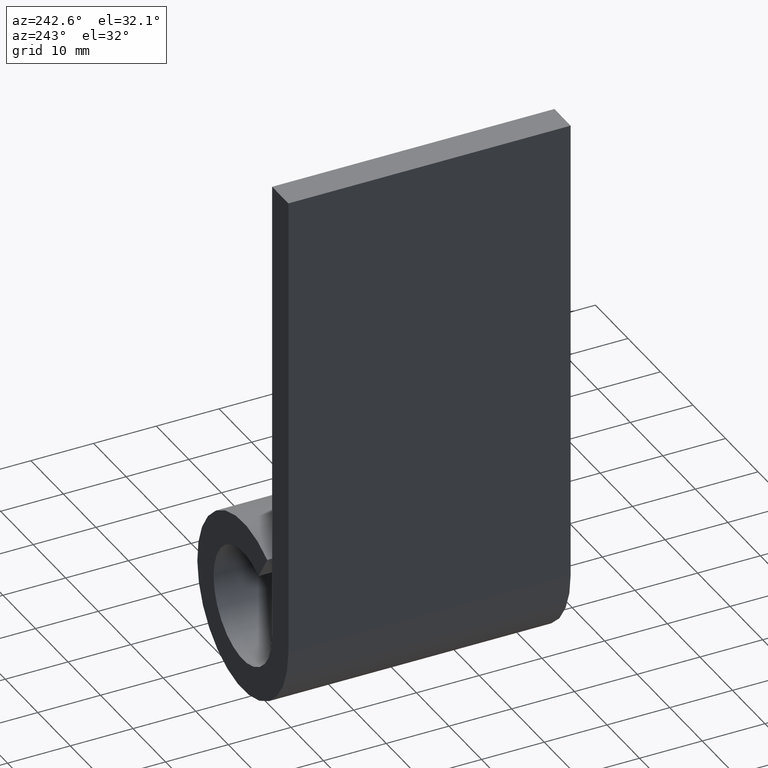
[diagram: clean part render]
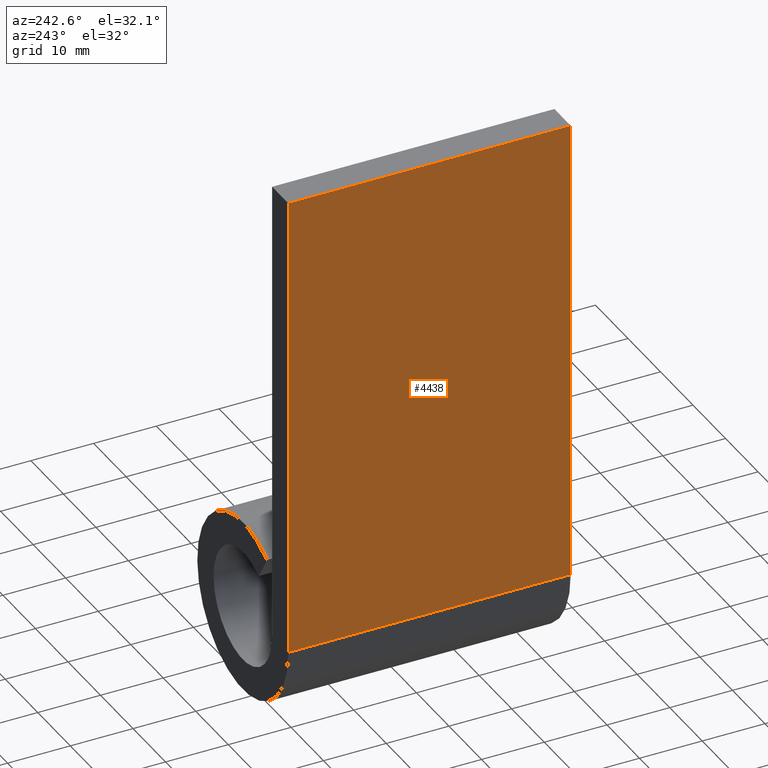
[diagram: same view with one face highlighted and labeled with its STEP entity id]
A machine part, auxiliary view. The second image highlights one B-rep face of the part: STEP entity #4438.
In plain terms, the highlighted planar face has unit normal (1, -0, 0).
Its self-contained STEP definition (entity closure, byte-faithful):
#51 = ORIENTED_EDGE ( 'NONE', *, *, #8779, .F. ) ;
#410 = CARTESIAN_POINT ( 'NONE',  ( -13.99999999999999822, -22.50000000000000000, 75.00000000000000000 ) ) ;
#685 = CARTESIAN_POINT ( 'NONE',  ( -13.99999999999999822, 22.50000000000000000, 75.00000000000000000 ) ) ;
#713 = VERTEX_POINT ( 'NONE', #410 ) ;
#753 = DIRECTION ( 'NONE',  ( -0.000000000000000000, -1.000000000000000000, -0.000000000000000000 ) ) ;
#1415 = VERTEX_POINT ( 'NONE', #9818 ) ;
#1541 = FACE_OUTER_BOUND ( 'NONE', #3290, .T. ) ;
#1801 = VECTOR ( 'NONE', #2976, 1000.000000000000000 ) ;
#1897 = VERTEX_POINT ( 'NONE', #7915 ) ;
#2610 = VECTOR ( 'NONE', #753, 1000.000000000000000 ) ;
#2976 = DIRECTION ( 'NONE',  ( -0.000000000000000000, -0.000000000000000000, 1.000000000000000000 ) ) ;
#3172 = LINE ( 'NONE', #3835, #1801 ) ;
#3290 = EDGE_LOOP ( 'NONE', ( #7921, #51, #4762, #5998 ) ) ;
#3835 = CARTESIAN_POINT ( 'NONE',  ( -13.99999999999999822, 22.50000000000000000, 75.00000000000000000 ) ) ;
#4144 = DIRECTION ( 'NONE',  ( 1.000000000000000000, -0.000000000000000000, 0.000000000000000000 ) ) ;
#4175 = CARTESIAN_POINT ( 'NONE',  ( -13.99999999999999645, -22.50000000000000000, 2.571758278209442450E-15 ) ) ;
#4438 = ADVANCED_FACE ( 'NONE', ( #1541 ), #7811, .F. ) ;
#4762 = ORIENTED_EDGE ( 'NONE', *, *, #6075, .F. ) ;
#5591 = VECTOR ( 'NONE', #9191, 1000.000000000000000 ) ;
#5998 = ORIENTED_EDGE ( 'NONE', *, *, #8371, .T. ) ;
#6033 = DIRECTION ( 'NONE',  ( -0.000000000000000000, -1.000000000000000000, -0.000000000000000000 ) ) ;
#6075 = EDGE_CURVE ( 'NONE', #1897, #1415, #3172, .T. ) ;
#6464 = CARTESIAN_POINT ( 'NONE',  ( -13.99999999999999822, -22.50000000000000000, 75.00000000000000000 ) ) ;
#6465 = LINE ( 'NONE', #10416, #2610 ) ;
#7525 = VERTEX_POINT ( 'NONE', #4175 ) ;
#7811 = PLANE ( 'NONE',  #7931 ) ;
#7915 = CARTESIAN_POINT ( 'NONE',  ( -13.99999999999999645, 22.50000000000000000, 2.571758278209442450E-15 ) ) ;
#7921 = ORIENTED_EDGE ( 'NONE', *, *, #11357, .T. ) ;
#7931 = AXIS2_PLACEMENT_3D ( 'NONE', #685, #4144, #10516 ) ;
#7965 = LINE ( 'NONE', #6464, #5591 ) ;
#8371 = EDGE_CURVE ( 'NONE', #1897, #7525, #6465, .T. ) ;
#8779 = EDGE_CURVE ( 'NONE', #1415, #713, #11312, .T. ) ;
#9191 = DIRECTION ( 'NONE',  ( -0.000000000000000000, -0.000000000000000000, 1.000000000000000000 ) ) ;
#9344 = VECTOR ( 'NONE', #6033, 1000.000000000000000 ) ;
#9717 = CARTESIAN_POINT ( 'NONE',  ( -13.99999999999999822, 22.50000000000000000, 75.00000000000000000 ) ) ;
#9818 = CARTESIAN_POINT ( 'NONE',  ( -13.99999999999999822, 22.50000000000000000, 75.00000000000000000 ) ) ;
#10416 = CARTESIAN_POINT ( 'NONE',  ( -13.99999999999999645, 22.50000000000000000, 2.571758278209442450E-15 ) ) ;
#10516 = DIRECTION ( 'NONE',  ( 0.000000000000000000, 0.000000000000000000, -1.000000000000000000 ) ) ;
#11312 = LINE ( 'NONE', #9717, #9344 ) ;
#11357 = EDGE_CURVE ( 'NONE', #7525, #713, #7965, .T. ) ;